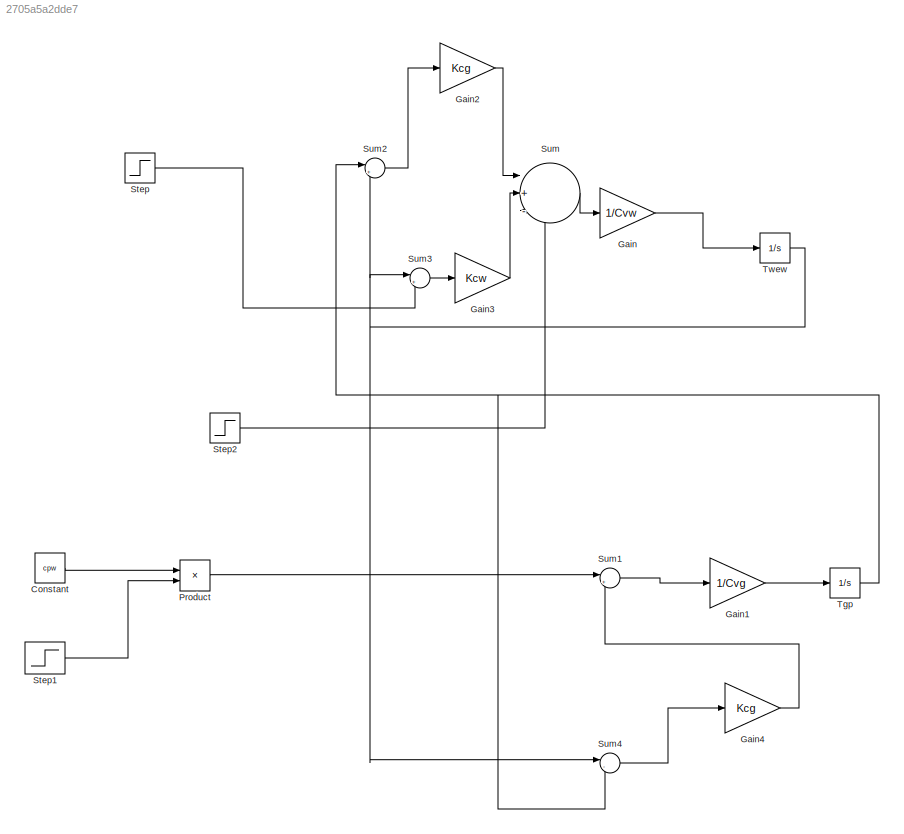
MODEL slx_2705a5a2dde7
KIND model
CONFIG AbsTol = auto
CONFIG EnableMultiTasking = off
CONFIG FixedStep = auto
CONFIG MaxStep = auto
CONFIG MinStep = auto
CONFIG RelTol = 1e-3
CONFIG SampleTimeConstraint = Unconstrained
CONFIG SolverName = VariableStepAuto
CONFIG StartTime = 0.0
CONFIG StopTime = 10.0
BLOCK [Constant] Constant
  Value = cpw
BLOCK [Gain] Gain
  Gain = 1/Cvw
BLOCK [Gain] Gain1
  Gain = 1/Cvg
BLOCK [Gain] Gain2
  Gain = Kcg
BLOCK [Gain] Gain3
  Gain = Kcw
BLOCK [Gain] Gain4
  Gain = Kcg
BLOCK [Product] Product
  Ports = [2, 1]
BLOCK [Step] Step
  After = Tzew0 + dT
  Before = Tzew0
  SampleTime = 0
  Time = dT
BLOCK [Step] Step1
  After = fmg + dT
  Before = fmg
  SampleTime = 0
  Time = dT
BLOCK [Step] Step2
  After = qt + dT
  Before = qt
  SampleTime = 0
  Time = dT
BLOCK [Sum] Sum
  Inputs = |+-+
  Ports = [3, 1]
BLOCK [Sum] Sum1
  Inputs = |+-
  Ports = [2, 1]
BLOCK [Sum] Sum2
  Inputs = |++
  Ports = [2, 1]
BLOCK [Sum] Sum3
  Inputs = |+-
  Ports = [2, 1]
BLOCK [Sum] Sum4
  Inputs = |-+
  Ports = [2, 1]
BLOCK [Integrator] Tgp
  Ports = [1, 1]
BLOCK [Integrator] Twew
  Ports = [1, 1]
LINE Constant:1 -> Product:1
LINE Gain1:1 -> Tgp:1
LINE Gain2:1 -> Sum:1
LINE Gain3:1 -> Sum:2
LINE Gain4:1 -> Sum1:2
LINE Gain:1 -> Twew:1
LINE Product:1 -> Sum1:1
LINE Step1:1 -> Product:2
LINE Step2:1 -> Sum:3
LINE Step:1 -> Sum3:2
LINE Sum1:1 -> Gain1:1
LINE Sum2:1 -> Gain2:1
LINE Sum3:1 -> Gain3:1
LINE Sum4:1 -> Gain4:1
LINE Sum:1 -> Gain:1
NET Tgp:1 -> Sum2:1, Sum4:2
NET Twew:1 -> Sum2:2, Sum3:1, Sum4:1
note: NET lines group one-source signal fan-out (src -> all destinations, sorted); 1:1 wires keep LINE
